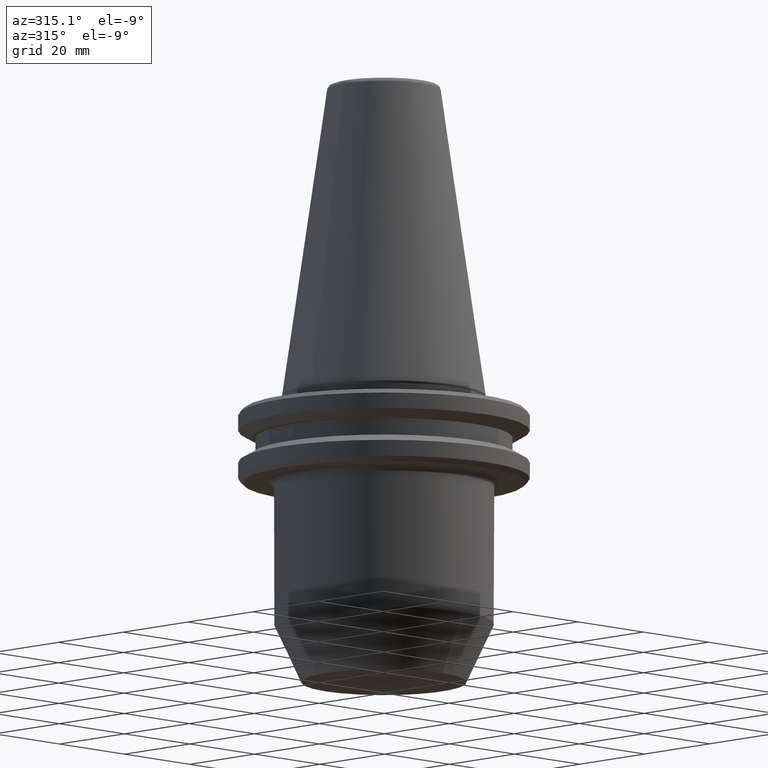
[diagram: clean part render]
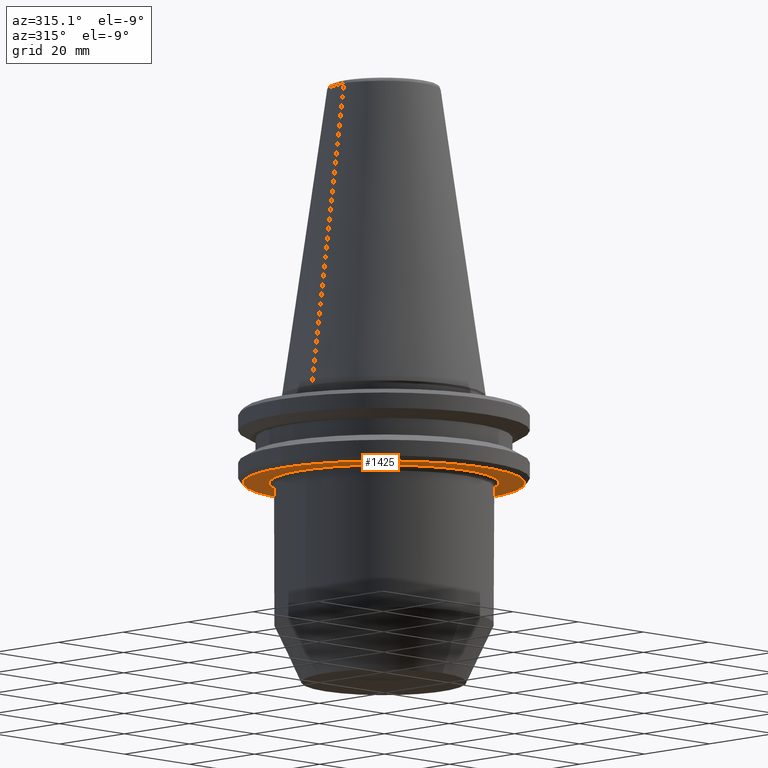
[diagram: same view with one face highlighted and labeled with its STEP entity id]
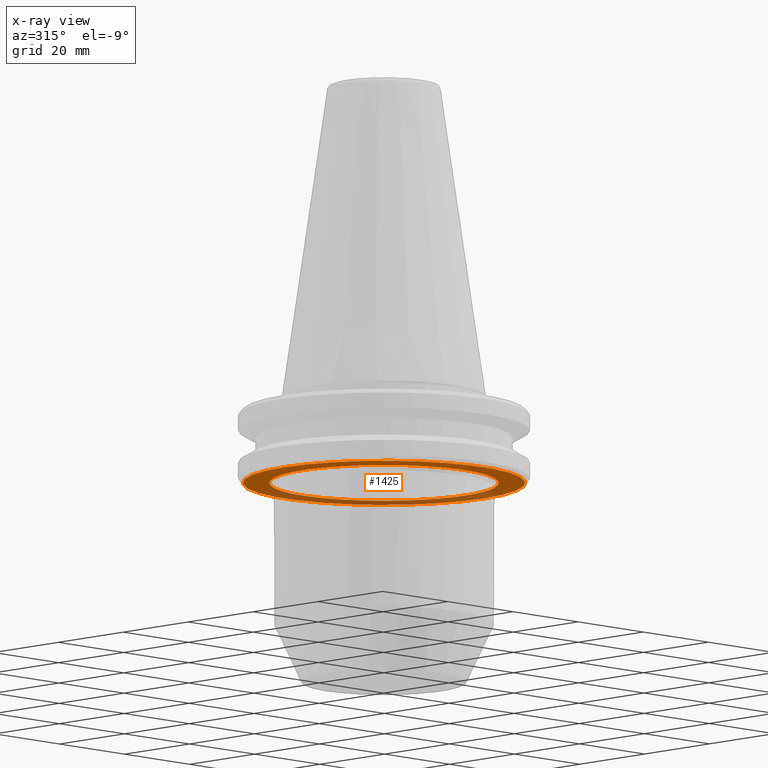
[diagram: x-ray of the same camera — body ghosted, the highlighted face saturated]
A machine part, auxiliary view. The second image highlights one B-rep face of the part: STEP entity #1425.
The next image is the same camera in x-ray: the body ghosted, the highlighted face saturated — about 33% of this face is hidden behind the body in this view.
In plain terms, the highlighted planar face has unit normal (0, 0, -1).
Its self-contained STEP definition (entity closure, byte-faithful):
#5 = CIRCLE ( 'NONE', #312, 30.75000000000072100 ) ;
#25 = B_SPLINE_CURVE_WITH_KNOTS ( 'NONE', 3,
 ( #825, #1403, #1048, #350, #329, #1164, #470, #1287, #706, #594, #1406, #829, #1555, #358, #938, #1139, #95, #474, #224, #1050, #1294, #1170, #601, #1410, #710, #1564, #1384, #835, #99, #1054, #941, #232, #1178, #363, #713, #1298, #481, #1264, #239, #1093, #865, #1257, #712, #1423, #737, #1308, #1331, #328, #1045, #875, #44, #879, #750, #1302, #678, #1021, #669, #792, #1511, #1368, #434, #313, #1012, #1120, #664, #1124, #174, #914, #188, #1284, #431, #255, #1072, #965, #565, #1326, #1357, #48, #964, #374, #1382, #1501, #1288, #1559, #1392, #1346, #1300, #1407, #1419, #1372, #1261, #1259, #1274, #1510, #789, #1330, #1522, #1527, #1272, #1509, #1502, #1290 ),
 .UNSPECIFIED., .F., .F.,
 ( 4, 1, 1, 1, 1, 2, 2, 1, 1, 1, 1, 2, 2, 1, 1, 1, 2, 2, 2, 1, 1, 1, 2, 2, 1, 1, 1, 1, 2, 2, 1, 1, 1, 1, 2, 2, 2, 1, 1, 1, 1, 2, 2, 1, 1, 1, 1, 2, 2, 1, 1, 1, 2, 2, 2, 1, 1, 1, 2, 2, 1, 1, 1, 1, 2, 2, 1, 1, 1, 1, 2, 2, 4 ),
 ( 0.0000000000000000000, 0.03125000000000039600, 0.04687500000000057600, 0.05468750000000067300, 0.05859375000000069400, 0.06054687500000068000, 0.06250000000000066600, 0.09375000000000061100, 0.1093750000000005600, 0.1171875000000004900, 0.1210937500000004400, 0.1230468750000004300, 0.1250000000000004200, 0.1562500000000000800, 0.1718749999999999700, 0.1796874999999999200, 0.1835937499999998600, 0.1874999999999997800, 0.2499999999999990600, 0.2812499999999986700, 0.2968749999999984500, 0.3046874999999983300, 0.3085937499999982800, 0.3124999999999982200, 0.3437499999999977200, 0.3593749999999975000, 0.3671874999999974500, 0.3710937499999974500, 0.3730468749999975000, 0.3749999999999975600, 0.4062499999999982800, 0.4218749999999986700, 0.4296874999999988900, 0.4335937499999990000, 0.4355468749999990600, 0.4374999999999991700, 0.5000000000000005600, 0.5312500000000013300, 0.5468750000000015500, 0.5546875000000017800, 0.5585937500000018900, 0.5605468750000018900, 0.5625000000000018900, 0.5937500000000025500, 0.6093750000000027800, 0.6171875000000030000, 0.6210937500000031100, 0.6230468750000031100, 0.6250000000000031100, 0.6562500000000035500, 0.6718750000000037700, 0.6796875000000037700, 0.6835937500000038900, 0.6875000000000038900, 0.7500000000000041100, 0.7812500000000043300, 0.7968750000000044400, 0.8046875000000044400, 0.8085937500000043300, 0.8125000000000043300, 0.8437500000000032200, 0.8593750000000026600, 0.8671875000000024400, 0.8710937500000023300, 0.8730468750000024400, 0.8750000000000024400, 0.9062500000000018900, 0.9218750000000017800, 0.9296875000000016700, 0.9335937500000015500, 0.9355468750000016700, 0.9375000000000016700, 1.000000000000000000 ),
 .UNSPECIFIED. ) ;
#44 = CARTESIAN_POINT ( 'NONE',  ( -3.837335444516245100, -24.73962540207490300, -19.10000000000000500 ) ) ;
#45 = CARTESIAN_POINT ( 'NONE',  ( 20.56088779845605100, 14.22903646988849900, -19.10000000000000100 ) ) ;
#48 = CARTESIAN_POINT ( 'NONE',  ( 15.01572007592657200, -20.01148269599195100, -19.10000000000000900 ) ) ;
#52 = CARTESIAN_POINT ( 'NONE',  ( 17.21603762584531300, 18.12778312858146300, -19.10000000000000500 ) ) ;
#57 = CARTESIAN_POINT ( 'NONE',  ( 5.764681737297190800, 24.32633328048867600, -19.10000000000000100 ) ) ;
#61 = CARTESIAN_POINT ( 'NONE',  ( 1.514953816513463700, 24.95408993328777200, -19.10000000000000900 ) ) ;
#68 = CARTESIAN_POINT ( 'NONE',  ( -19.52000370093090000, 15.62708017767181600, -19.10000000000000900 ) ) ;
#72 = CARTESIAN_POINT ( 'NONE',  ( -13.78382136989219100, 20.85700700325283600, -19.10000000000000100 ) ) ;
#76 = CARTESIAN_POINT ( 'NONE',  ( -22.34287878874224700, 11.21650911063311400, -19.10000000000000900 ) ) ;
#80 = CARTESIAN_POINT ( 'NONE',  ( -23.97148751168807500, 7.097145650212051600, -19.10000000000000900 ) ) ;
#93 = CARTESIAN_POINT ( 'NONE',  ( 23.66849171369898400, 8.050000000000000700, -19.10000000000006200 ) ) ;
#95 = CARTESIAN_POINT ( 'NONE',  ( -22.50104028027932300, -10.89518905508793300, -19.10000000000000100 ) ) ;
#99 = CARTESIAN_POINT ( 'NONE',  ( -15.11547583870624200, -19.91879939989068000, -19.10000000000000500 ) ) ;
#149 = CARTESIAN_POINT ( 'NONE',  ( 8.001669642592075200, 23.70393824034986400, -19.10000000000000900 ) ) ;
#166 = CARTESIAN_POINT ( 'NONE',  ( 19.94689003573789100, 15.07061682492183500, -19.09999999999999800 ) ) ;
#172 = CARTESIAN_POINT ( 'NONE',  ( 14.73871795094084500, 20.24558678046984600, -19.10000000000000900 ) ) ;
#173 = EDGE_CURVE ( 'NONE', #614, #782, #5, .T. ) ;
#174 = CARTESIAN_POINT ( 'NONE',  ( 5.546619939708148400, -24.37697613497838100, -19.10000000000000500 ) ) ;
#175 = ORIENTED_EDGE ( 'NONE', *, *, #1140, .T. ) ;
#178 = CARTESIAN_POINT ( 'NONE',  ( 5.632613471503741900, 24.35724758514024700, -19.10000000000000900 ) ) ;
#183 = CARTESIAN_POINT ( 'NONE',  ( -3.174458745867000600, 24.80659953822524200, -19.10000000000000900 ) ) ;
#188 = CARTESIAN_POINT ( 'NONE',  ( 7.321596763233437800, -23.92274225090835700, -19.10000000000000500 ) ) ;
#194 = CARTESIAN_POINT ( 'NONE',  ( -14.00594933652659600, 20.70848981279971200, -19.10000000000000500 ) ) ;
#201 = CARTESIAN_POINT ( 'NONE',  ( -22.20142180490238500, 11.49584313460023600, -19.09999999999999800 ) ) ;
#206 = AXIS2_PLACEMENT_3D ( 'NONE', #459, #1107, #527 ) ;
#212 = CARTESIAN_POINT ( 'NONE',  ( 0.0000000000000000000, 2.166680460328873200E-015, -19.10000000000000500 ) ) ;
#224 = CARTESIAN_POINT ( 'NONE',  ( -21.65865191858413000, -12.52222715960475200, -19.10000000000001200 ) ) ;
#232 = CARTESIAN_POINT ( 'NONE',  ( -14.23102820838347400, -20.55446680334251400, -19.10000000000000900 ) ) ;
#239 = CARTESIAN_POINT ( 'NONE',  ( -10.51138542257542200, -22.68287510223854000, -19.10000000000000100 ) ) ;
#255 = CARTESIAN_POINT ( 'NONE',  ( 9.336069984981389100, -23.19151288567449100, -19.10000000000000500 ) ) ;
#288 = CARTESIAN_POINT ( 'NONE',  ( -11.00061980426187300, 22.46108022351477400, -19.10000000000000100 ) ) ;
#301 = AXIS2_PLACEMENT_3D ( 'NONE', #1105, #654, #723 ) ;
#309 = CARTESIAN_POINT ( 'NONE',  ( 20.02539040750961500, 14.96653570878245000, -19.10000000000000100 ) ) ;
#311 = CARTESIAN_POINT ( 'NONE',  ( 10.82840084368984700, 22.53845412915854100, -19.10000000000000900 ) ) ;
#312 = AXIS2_PLACEMENT_3D ( 'NONE', #435, #1434, #553 ) ;
#313 = CARTESIAN_POINT ( 'NONE',  ( 4.400037488844588100, -24.61412716344575800, -19.10000000000000900 ) ) ;
#319 = CARTESIAN_POINT ( 'NONE',  ( 2.685130315645277000, 24.85971880835476700, -19.10000000000000100 ) ) ;
#324 = CARTESIAN_POINT ( 'NONE',  ( -6.352159153036065000, 24.17957312679568100, -19.09999999999999800 ) ) ;
#328 = CARTESIAN_POINT ( 'NONE',  ( -6.516696324927552900, -24.13575167085688400, -19.10000000000000500 ) ) ;
#329 = CARTESIAN_POINT ( 'NONE',  ( -24.14217418037019100, -6.496528408417751700, -19.10000000000000100 ) ) ;
#333 = CARTESIAN_POINT ( 'NONE',  ( -17.96771113259132600, 17.39801436242582300, -19.10000000000000500 ) ) ;
#337 = CARTESIAN_POINT ( 'NONE',  ( -22.46244799386568000, 10.97452844390143900, -19.10000000000000100 ) ) ;
#350 = CARTESIAN_POINT ( 'NONE',  ( -24.28972683222337600, -5.933501320466171500, -19.10000000000000500 ) ) ;
#358 = CARTESIAN_POINT ( 'NONE',  ( -22.61311896569745600, -10.66115860203794300, -19.10000000000000900 ) ) ;
#363 = CARTESIAN_POINT ( 'NONE',  ( -13.48922618123229500, -21.06073490109870500, -19.10000000000000900 ) ) ;
#374 = CARTESIAN_POINT ( 'NONE',  ( 16.48245583345043400, -18.79861718530351000, -19.10000000000000100 ) ) ;
#388 = CARTESIAN_POINT ( 'NONE',  ( -25.06702412868633400, 1.057622911398116200, -19.10000000000000100 ) ) ;
#413 = CARTESIAN_POINT ( 'NONE',  ( 23.66849171366861900, -8.050000000000000700, -19.10000000000006200 ) ) ;
#420 = CARTESIAN_POINT ( 'NONE',  ( 22.61325892373552900, 10.66947929158425800, -19.10000000000000500 ) ) ;
#423 = CARTESIAN_POINT ( 'NONE',  ( -30.75000000000072100, 3.827021247335525400E-015, -19.10000000000006200 ) ) ;
#426 = CARTESIAN_POINT ( 'NONE',  ( 19.86878916942251600, 15.17343649878746200, -19.10000000000000500 ) ) ;
#431 = CARTESIAN_POINT ( 'NONE',  ( 9.086935308265070800, -23.29131025708751700, -19.10000000000000500 ) ) ;
#432 = CARTESIAN_POINT ( 'NONE',  ( 9.749797765388738200, 23.02062913941136900, -19.10000000000000900 ) ) ;
#434 = CARTESIAN_POINT ( 'NONE',  ( 3.202797052169963800, -24.81115412286859700, -19.10000000000000900 ) ) ;
#435 = CARTESIAN_POINT ( 'NONE',  ( 0.0000000000000000000, 0.0000000000000000000, -19.10000000000006200 ) ) ;
#436 = CARTESIAN_POINT ( 'NONE',  ( 3.889547225842317600, 24.71280324778175700, -19.10000000000000500 ) ) ;
#442 = CARTESIAN_POINT ( 'NONE',  ( -7.104668214216173000, 23.97932416124641000, -19.10000000000000100 ) ) ;
#448 = CARTESIAN_POINT ( 'NONE',  ( -22.44217321107358700, 11.01593493471555300, -19.10000000000000100 ) ) ;
#451 = CARTESIAN_POINT ( 'NONE',  ( -19.90777072030379500, 15.12415364009387800, -19.10000000000000500 ) ) ;
#452 = EDGE_CURVE ( 'NONE', #782, #614, #910, .T. ) ;
#456 = CARTESIAN_POINT ( 'NONE',  ( -23.20150613021001700, 9.356352669474691900, -19.10000000000000500 ) ) ;
#459 = CARTESIAN_POINT ( 'NONE',  ( 0.0000000000000000000, 0.0000000000000000000, -19.10000000000006200 ) ) ;
#464 = DIRECTION ( 'NONE',  ( 0.0000000000000000000, 0.0000000000000000000, -1.000000000000000000 ) ) ;
#470 = CARTESIAN_POINT ( 'NONE',  ( -24.02977038931001300, -6.897235517029527900, -19.10000000000000500 ) ) ;
#474 = CARTESIAN_POINT ( 'NONE',  ( -22.16816779791543400, -11.57955514554833000, -19.10000000000000500 ) ) ;
#478 = CARTESIAN_POINT ( 'NONE',  ( 30.75000000000072100, 0.0000000000000000000, -19.10000000000006200 ) ) ;
#481 = CARTESIAN_POINT ( 'NONE',  ( -10.91607335808650000, -22.49215156394640800, -19.10000000000000500 ) ) ;
#527 = DIRECTION ( 'NONE',  ( -1.000000000000000000, 0.0000000000000000000, 0.0000000000000000000 ) ) ;
#534 = B_SPLINE_CURVE_WITH_KNOTS ( 'NONE', 3,
 ( #1237, #1224, #1114, #420, #1355, #545, #891, #1484, #658, #1003, #773, #45, #650, #309, #166, #1118, #426, #1241, #552, #1360, #662, #52, #1492, #1342, #779, #172, #896, #1247, #311, #1010, #1366, #1123, #432, #667, #149, #557, #1499, #783, #57, #900, #178, #1015, #436, #319, #1126, #763, #563, #1251, #61, #672, #1371, #183, #1508, #791, #1019, #904, #1460, #324, #1135, #442, #1258, #568, #1377, #796, #675, #1515, #907, #288, #680, #1523, #802, #72, #915, #194, #1144, #1029, #333, #1268, #68, #451, #808, #1387, #574, #922, #684, #1530, #201, #76, #1031, #448, #337, #1147, #456, #1271, #581, #1538, #1391, #689, #80, #813, #1023, #1154 ),
 .UNSPECIFIED., .F., .F.,
 ( 4, 1, 1, 1, 1, 2, 2, 1, 1, 1, 1, 2, 2, 1, 1, 1, 2, 2, 2, 1, 1, 1, 2, 2, 1, 1, 1, 1, 2, 2, 1, 1, 1, 1, 2, 2, 2, 1, 1, 1, 1, 2, 2, 1, 1, 1, 1, 2, 2, 1, 1, 1, 2, 2, 2, 1, 1, 1, 2, 2, 1, 1, 1, 1, 2, 2, 1, 1, 1, 1, 2, 2, 4 ),
 ( 0.0000000000000000000, 0.03125000000000012500, 0.04687500000000022900, 0.05468750000000025000, 0.05859375000000025700, 0.06054687500000022200, 0.06250000000000018000, 0.09374999999999943100, 0.1093749999999990600, 0.1171874999999988900, 0.1210937499999987500, 0.1230468749999986700, 0.1249999999999986000, 0.1562499999999978900, 0.1718749999999976100, 0.1796874999999974500, 0.1835937499999973100, 0.1874999999999972000, 0.2499999999999955000, 0.2812499999999946200, 0.2968749999999941700, 0.3046874999999940000, 0.3085937499999939500, 0.3124999999999938900, 0.3437499999999941200, 0.3593749999999941700, 0.3671874999999942300, 0.3710937499999942800, 0.3730468749999943400, 0.3749999999999943900, 0.4062499999999949500, 0.4218749999999952300, 0.4296874999999953900, 0.4335937499999954500, 0.4355468749999955000, 0.4374999999999955600, 0.4999999999999967800, 0.5312499999999973400, 0.5468749999999976700, 0.5546874999999977800, 0.5585937499999977800, 0.5605468749999977800, 0.5624999999999977800, 0.5937499999999984500, 0.6093749999999988900, 0.6171874999999990000, 0.6210937499999991100, 0.6230468749999992200, 0.6249999999999993300, 0.6562500000000003300, 0.6718750000000007800, 0.6796875000000010000, 0.6835937500000012200, 0.6875000000000013300, 0.7500000000000028900, 0.7812500000000037700, 0.7968750000000042200, 0.8046875000000044400, 0.8085937500000044400, 0.8125000000000044400, 0.8437500000000043300, 0.8593750000000043300, 0.8671875000000042200, 0.8710937500000041100, 0.8730468750000041100, 0.8750000000000042200, 0.9062500000000027800, 0.9218750000000020000, 0.9296875000000015500, 0.9335937500000014400, 0.9355468750000013300, 0.9375000000000012200, 1.000000000000000000 ),
 .UNSPECIFIED. ) ;
#545 = CARTESIAN_POINT ( 'NONE',  ( 22.22356264588319900, 11.45100580936844800, -19.10000000000000100 ) ) ;
#552 = CARTESIAN_POINT ( 'NONE',  ( 18.71814443126283200, 16.59923025378017400, -19.10000000000000500 ) ) ;
#553 = DIRECTION ( 'NONE',  ( -1.000000000000000000, 0.0000000000000000000, 0.0000000000000000000 ) ) ;
#557 = CARTESIAN_POINT ( 'NONE',  ( 6.804256176435000500, 24.06098711988689200, -19.10000000000000100 ) ) ;
#563 = CARTESIAN_POINT ( 'NONE',  ( 1.646933561098471200, 24.94573141396943000, -19.10000000000000100 ) ) ;
#565 = CARTESIAN_POINT ( 'NONE',  ( 11.00845535462885200, -22.49290010121016400, -19.10000000000000500 ) ) ;
#568 = CARTESIAN_POINT ( 'NONE',  ( -9.231820171472939800, 23.23766516332873900, -19.10000000000000500 ) ) ;
#574 = CARTESIAN_POINT ( 'NONE',  ( -20.23275092316867300, 14.68481230799946300, -19.10000000000000500 ) ) ;
#580 = FACE_BOUND ( 'NONE', #826, .T. ) ;
#581 = CARTESIAN_POINT ( 'NONE',  ( -23.80549171706875800, 7.638891849124218100, -19.09999999999999800 ) ) ;
#594 = CARTESIAN_POINT ( 'NONE',  ( -23.78696124392714100, -7.724297537274465800, -19.10000000000000900 ) ) ;
#601 = CARTESIAN_POINT ( 'NONE',  ( -20.38937916831026300, -14.46655565650135200, -19.10000000000000900 ) ) ;
#603 = CARTESIAN_POINT ( 'NONE',  ( -24.80000000000000400, -3.155946767611901300, -19.10000000000006200 ) ) ;
#614 = VERTEX_POINT ( 'NONE', #423 ) ;
#650 = CARTESIAN_POINT ( 'NONE',  ( 20.20655719714997300, 14.72240385313555900, -19.10000000000000500 ) ) ;
#654 = DIRECTION ( 'NONE',  ( -0.0000000000000000000, -0.0000000000000000000, 1.000000000000000000 ) ) ;
#658 = CARTESIAN_POINT ( 'NONE',  ( 22.10868140371263700, 11.67082041018687200, -19.10000000000000500 ) ) ;
#662 = CARTESIAN_POINT ( 'NONE',  ( 17.41032469338047400, 17.94263416725934900, -19.10000000000000500 ) ) ;
#664 = CARTESIAN_POINT ( 'NONE',  ( 5.420645475696684200, -24.40529688832838300, -19.10000000000000500 ) ) ;
#667 = CARTESIAN_POINT ( 'NONE',  ( 9.006694230404635300, 23.33223599621141300, -19.10000000000000100 ) ) ;
#669 = CARTESIAN_POINT ( 'NONE',  ( 1.307037714904049500, -24.96584430697337000, -19.10000000000000500 ) ) ;
#672 = CARTESIAN_POINT ( 'NONE',  ( 0.1432002703999451500, 25.03510498679143100, -19.10000000000000500 ) ) ;
#675 = CARTESIAN_POINT ( 'NONE',  ( -10.19007934134699900, 22.82902092945946400, -19.10000000000000900 ) ) ;
#678 = CARTESIAN_POINT ( 'NONE',  ( 0.8912645041208736600, -24.98509914269873300, -19.10000000000000500 ) ) ;
#680 = CARTESIAN_POINT ( 'NONE',  ( -11.95619137846467700, 21.97618856144556400, -19.10000000000000100 ) ) ;
#684 = CARTESIAN_POINT ( 'NONE',  ( -21.29227914410361000, 13.13553402114794000, -19.10000000000000500 ) ) ;
#688 = CARTESIAN_POINT ( 'NONE',  ( -24.80000000000000400, -3.155946767611901300, -19.10000000000006200 ) ) ;
#689 = CARTESIAN_POINT ( 'NONE',  ( -23.95858801748797300, 7.140581203016998800, -19.10000000000000500 ) ) ;
#706 = CARTESIAN_POINT ( 'NONE',  ( -23.99551224226559800, -7.015499603579669100, -19.10000000000000100 ) ) ;
#710 = CARTESIAN_POINT ( 'NONE',  ( -19.43506163519607800, -15.79224567608449100, -19.10000000000000900 ) ) ;
#712 = CARTESIAN_POINT ( 'NONE',  ( -8.751360785021525100, -23.43640131069515700, -19.10000000000000900 ) ) ;
#713 = CARTESIAN_POINT ( 'NONE',  ( -12.57879551944393100, -21.62584815565486800, -19.10000000000000500 ) ) ;
#723 = DIRECTION ( 'NONE',  ( -1.000000000000000000, 1.776356839400250500E-015, 0.0000000000000000000 ) ) ;
#737 = CARTESIAN_POINT ( 'NONE',  ( -7.018810586894471900, -23.99563298851090200, -19.10000000000000500 ) ) ;
#741 = CARTESIAN_POINT ( 'NONE',  ( -24.80000000000000100, 3.155946767611925300, -19.10000000000006200 ) ) ;
#742 = VERTEX_POINT ( 'NONE', #969 ) ;
#750 = CARTESIAN_POINT ( 'NONE',  ( -0.8534173427766136300, -25.00105539047618900, -19.10000000000000900 ) ) ;
#762 = VERTEX_POINT ( 'NONE', #688 ) ;
#763 = CARTESIAN_POINT ( 'NONE',  ( 1.777008712921567500, 24.93703428770977500, -19.10000000000000900 ) ) ;
#773 = CARTESIAN_POINT ( 'NONE',  ( 21.23753708916963100, 13.22188701558121900, -19.10000000000000900 ) ) ;
#775 = VERTEX_POINT ( 'NONE', #413 ) ;
#779 = CARTESIAN_POINT ( 'NONE',  ( 15.88573067890380500, 19.35872426209683500, -19.10000000000000100 ) ) ;
#782 = VERTEX_POINT ( 'NONE', #478 ) ;
#783 = CARTESIAN_POINT ( 'NONE',  ( 5.895308985402815300, 24.29525964389145900, -19.10000000000000500 ) ) ;
#787 = AXIS2_PLACEMENT_3D ( 'NONE', #212, #464, #1157 ) ;
#789 = CARTESIAN_POINT ( 'NONE',  ( 21.79787447261405100, -12.24364214807675400, -19.10000000000000500 ) ) ;
#791 = CARTESIAN_POINT ( 'NONE',  ( -5.301324708704212800, 24.43549640492053900, -19.10000000000000500 ) ) ;
#792 = CARTESIAN_POINT ( 'NONE',  ( 1.390207868339095700, -24.96135021552969100, -19.10000000000000100 ) ) ;
#796 = CARTESIAN_POINT ( 'NONE',  ( -10.07099033082150900, 22.88205860168992300, -19.10000000000000100 ) ) ;
#802 = CARTESIAN_POINT ( 'NONE',  ( -13.55966609227880500, 21.00459431301502600, -19.10000000000000100 ) ) ;
#808 = CARTESIAN_POINT ( 'NONE',  ( -20.07059613371497200, 14.90570133534441400, -19.10000000000000500 ) ) ;
#813 = CARTESIAN_POINT ( 'NONE',  ( -24.35946932984918300, 5.778727982650878800, -19.10000000000000500 ) ) ;
#825 = CARTESIAN_POINT ( 'NONE',  ( -24.80000000000000400, -3.155946767611901300, -19.10000000000006200 ) ) ;
#826 = EDGE_LOOP ( 'NONE', ( #1129, #175, #1305, #1208 ) ) ;
#829 = CARTESIAN_POINT ( 'NONE',  ( -22.99037381342548200, -9.831495198608154200, -19.10000000000000500 ) ) ;
#835 = CARTESIAN_POINT ( 'NONE',  ( -16.11474838664366900, -19.13755923637349800, -19.10000000000000900 ) ) ;
#865 = CARTESIAN_POINT ( 'NONE',  ( -10.38816310743743900, -22.73956709562450500, -19.10000000000000500 ) ) ;
#875 = CARTESIAN_POINT ( 'NONE',  ( -5.145067506338336600, -24.50112790000743200, -19.10000000000000900 ) ) ;
#879 = CARTESIAN_POINT ( 'NONE',  ( -1.848697175712388900, -24.94046687075803700, -19.10000000000000900 ) ) ;
#882 = FACE_OUTER_BOUND ( 'NONE', #1529, .T. ) ;
#891 = CARTESIAN_POINT ( 'NONE',  ( 22.16589015388815300, 11.56179209410478100, -19.10000000000000500 ) ) ;
#896 = CARTESIAN_POINT ( 'NONE',  ( 12.90348748065503400, 21.42497509767990800, -19.10000000000000500 ) ) ;
#900 = CARTESIAN_POINT ( 'NONE',  ( 5.677522843380419500, 24.34682105090280800, -19.10000000000000900 ) ) ;
#904 = CARTESIAN_POINT ( 'NONE',  ( -6.150622053705553100, 24.23184143722073000, -19.10000000000000500 ) ) ;
#907 = CARTESIAN_POINT ( 'NONE',  ( -10.30784933787237800, 22.77608834432724200, -19.10000000000000500 ) ) ;
#910 = CIRCLE ( 'NONE', #206, 30.75000000000072100 ) ;
#914 = CARTESIAN_POINT ( 'NONE',  ( 6.288379528338332100, -24.20681812615407600, -19.10000000000000500 ) ) ;
#915 = CARTESIAN_POINT ( 'NONE',  ( -13.93279036081104700, 20.75777849851472800, -19.10000000000001200 ) ) ;
#919 = VERTEX_POINT ( 'NONE', #93 ) ;
#922 = CARTESIAN_POINT ( 'NONE',  ( -20.70373961477905300, 14.03099937659802300, -19.10000000000000900 ) ) ;
#938 = CARTESIAN_POINT ( 'NONE',  ( -22.55700998960996600, -10.77883175066905800, -19.10000000000000500 ) ) ;
#941 = CARTESIAN_POINT ( 'NONE',  ( -14.38005745278015200, -20.45049410444327600, -19.10000000000000900 ) ) ;
#964 = CARTESIAN_POINT ( 'NONE',  ( 16.00197630209950700, -19.21387347180726800, -19.10000000000000500 ) ) ;
#965 = CARTESIAN_POINT ( 'NONE',  ( 9.583404165392330800, -23.09039912489458500, -19.10000000000000900 ) ) ;
#969 = CARTESIAN_POINT ( 'NONE',  ( -24.80000000000000100, 3.155946767611925300, -19.10000000000006200 ) ) ;
#986 = EDGE_CURVE ( 'NONE', #762, #742, #1390, .T. ) ;
#1003 = CARTESIAN_POINT ( 'NONE',  ( 21.76264463224083200, 12.32361944706672200, -19.10000000000000100 ) ) ;
#1010 = CARTESIAN_POINT ( 'NONE',  ( 10.25105216874928100, 22.80296664504478000, -19.10000000000000900 ) ) ;
#1012 = CARTESIAN_POINT ( 'NONE',  ( 4.996023306369593800, -24.49681367235386600, -19.10000000000000500 ) ) ;
#1015 = CARTESIAN_POINT ( 'NONE',  ( 4.912483019740001600, 24.52247492355225600, -19.10000000000000900 ) ) ;
#1019 = CARTESIAN_POINT ( 'NONE',  ( -5.868034925698467900, 24.30258623475768000, -19.10000000000000500 ) ) ;
#1021 = CARTESIAN_POINT ( 'NONE',  ( 1.182289990208775100, -24.97227425496214400, -19.10000000000000100 ) ) ;
#1023 = CARTESIAN_POINT ( 'NONE',  ( -24.63172115102225500, 4.478312371961519200, -19.10000000000000500 ) ) ;
#1029 = CARTESIAN_POINT ( 'NONE',  ( -16.40523286797880700, 18.92041028809354900, -19.10000000000000900 ) ) ;
#1031 = CARTESIAN_POINT ( 'NONE',  ( -22.40257870899363400, 11.09623871377085500, -19.10000000000000500 ) ) ;
#1041 = PLANE ( 'NONE',  #787 ) ;
#1045 = CARTESIAN_POINT ( 'NONE',  ( -6.472935622485549000, -24.14752148548434400, -19.10000000000000100 ) ) ;
#1048 = CARTESIAN_POINT ( 'NONE',  ( -24.55070115982175900, -4.800361454493101500, -19.10000000000000500 ) ) ;
#1050 = CARTESIAN_POINT ( 'NONE',  ( -20.99495477598252400, -13.58090038887695700, -19.10000000000000500 ) ) ;
#1054 = CARTESIAN_POINT ( 'NONE',  ( -14.60265991588574000, -20.29339010028250800, -19.10000000000000500 ) ) ;
#1071 = ORIENTED_EDGE ( 'NONE', *, *, #173, .T. ) ;
#1072 = CARTESIAN_POINT ( 'NONE',  ( 9.501868670030127400, -23.12406770464987800, -19.10000000000000900 ) ) ;
#1093 = CARTESIAN_POINT ( 'NONE',  ( -10.43008158996299700, -22.72037321322985900, -19.10000000000000900 ) ) ;
#1105 = CARTESIAN_POINT ( 'NONE',  ( 0.0000000000000000000, 0.0000000000000000000, -19.10000000000000500 ) ) ;
#1107 = DIRECTION ( 'NONE',  ( -0.0000000000000000000, -0.0000000000000000000, -1.000000000000000000 ) ) ;
#1114 = CARTESIAN_POINT ( 'NONE',  ( 23.09549085123716600, 9.611383868858952800, -19.10000000000000500 ) ) ;
#1118 = CARTESIAN_POINT ( 'NONE',  ( 19.89436590746210600, 15.13988271968254100, -19.10000000000000900 ) ) ;
#1120 = CARTESIAN_POINT ( 'NONE',  ( 5.293357614929019100, -24.43345692396279700, -19.10000000000000100 ) ) ;
#1123 = CARTESIAN_POINT ( 'NONE',  ( 9.834730351160837700, 22.98448059795199000, -19.10000000000000500 ) ) ;
#1124 = CARTESIAN_POINT ( 'NONE',  ( 5.505472687627364100, -24.38629972157947600, -19.10000000000000100 ) ) ;
#1126 = CARTESIAN_POINT ( 'NONE',  ( 2.080173906217655900, 24.91439305088427100, -19.10000000000000500 ) ) ;
#1129 = ORIENTED_EDGE ( 'NONE', *, *, #1461, .T. ) ;
#1135 = CARTESIAN_POINT ( 'NONE',  ( -6.390699006000712500, 24.16941887326347800, -19.10000000000000100 ) ) ;
#1137 = CIRCLE ( 'NONE', #301, 25.00000000000000000 ) ;
#1139 = CARTESIAN_POINT ( 'NONE',  ( -22.51939301256001600, -10.85719954549779800, -19.10000000000000900 ) ) ;
#1140 = EDGE_CURVE ( 'NONE', #775, #919, #1137, .T. ) ;
#1144 = CARTESIAN_POINT ( 'NONE',  ( -15.28278914398578600, 19.83817028454195300, -19.10000000000000500 ) ) ;
#1147 = CARTESIAN_POINT ( 'NONE',  ( -22.78564438052530500, 10.31012492454961700, -19.10000000000000500 ) ) ;
#1154 = CARTESIAN_POINT ( 'NONE',  ( -24.80000000000000100, 3.155946767611925300, -19.10000000000006200 ) ) ;
#1157 = DIRECTION ( 'NONE',  ( -1.000000000000000000, 0.0000000000000000000, -0.0000000000000000000 ) ) ;
#1164 = CARTESIAN_POINT ( 'NONE',  ( -24.06413148243008800, -6.777156241134807000, -19.10000000000000100 ) ) ;
#1170 = CARTESIAN_POINT ( 'NONE',  ( -20.49243851606864600, -14.32021076507281500, -19.10000000000000500 ) ) ;
#1178 = CARTESIAN_POINT ( 'NONE',  ( -14.15503648290551900, -20.60686450209623300, -19.10000000000000500 ) ) ;
#1208 = ORIENTED_EDGE ( 'NONE', *, *, #986, .F. ) ;
#1224 = CARTESIAN_POINT ( 'NONE',  ( 23.45393160759155300, 8.680846471238490700, -19.09999999999999800 ) ) ;
#1237 = CARTESIAN_POINT ( 'NONE',  ( 23.66849171369898400, 8.050000000000000700, -19.10000000000006200 ) ) ;
#1241 = CARTESIAN_POINT ( 'NONE',  ( 19.40582458449413400, 15.77744380696416500, -19.09999999999999800 ) ) ;
#1247 = CARTESIAN_POINT ( 'NONE',  ( 11.96367982998305000, 21.97274798509371900, -19.10000000000000500 ) ) ;
#1251 = CARTESIAN_POINT ( 'NONE',  ( 1.560184079474393300, 24.95130588459781900, -19.10000000000001200 ) ) ;
#1257 = CARTESIAN_POINT ( 'NONE',  ( -9.715599491279743200, -23.04542020273179000, -19.10000000000000900 ) ) ;
#1258 = CARTESIAN_POINT ( 'NONE',  ( -8.098134397221146600, 23.67005486158208400, -19.10000000000000900 ) ) ;
#1259 = CARTESIAN_POINT ( 'NONE',  ( 20.26460828601700500, -14.65707736248280000, -19.10000000000000100 ) ) ;
#1261 = CARTESIAN_POINT ( 'NONE',  ( 19.81511518805403000, -15.24345940156882600, -19.10000000000000500 ) ) ;
#1264 = CARTESIAN_POINT ( 'NONE',  ( -10.63316395592460300, -22.62631506639652200, -19.10000000000000500 ) ) ;
#1268 = CARTESIAN_POINT ( 'NONE',  ( -18.71310544319783600, 16.60575122547776100, -19.10000000000000500 ) ) ;
#1271 = CARTESIAN_POINT ( 'NONE',  ( -23.61595104288627000, 8.215984443904798000, -19.10000000000000900 ) ) ;
#1272 = CARTESIAN_POINT ( 'NONE',  ( 22.06881979948293400, -11.74601560365417700, -19.10000000000000900 ) ) ;
#1274 = CARTESIAN_POINT ( 'NONE',  ( 20.86274382425791200, -13.80569238064624200, -19.10000000000000500 ) ) ;
#1284 = CARTESIAN_POINT ( 'NONE',  ( 8.502564518591171300, -23.51457798951741700, -19.10000000000000900 ) ) ;
#1287 = CARTESIAN_POINT ( 'NONE',  ( -24.00665983332454100, -6.977246190899399500, -19.09999999999999400 ) ) ;
#1288 = CARTESIAN_POINT ( 'NONE',  ( 16.88870464827671100, -18.43311090791267800, -19.10000000000000100 ) ) ;
#1290 = CARTESIAN_POINT ( 'NONE',  ( 23.66849171366861900, -8.050000000000000700, -19.10000000000006200 ) ) ;
#1294 = CARTESIAN_POINT ( 'NONE',  ( -20.64579071716962100, -14.09995930673131200, -19.10000000000000500 ) ) ;
#1298 = CARTESIAN_POINT ( 'NONE',  ( -11.47693012646543700, -22.21506421710463600, -19.10000000000000500 ) ) ;
#1300 = CARTESIAN_POINT ( 'NONE',  ( 19.45514217217456500, -15.70206937301807700, -19.10000000000000500 ) ) ;
#1302 = CARTESIAN_POINT ( 'NONE',  ( 0.3094236847493429000, -25.00203562122306200, -19.10000000000000500 ) ) ;
#1305 = ORIENTED_EDGE ( 'NONE', *, *, #1362, .T. ) ;
#1308 = CARTESIAN_POINT ( 'NONE',  ( -6.726291182025364400, -24.07842282972018600, -19.10000000000000500 ) ) ;
#1326 = CARTESIAN_POINT ( 'NONE',  ( 12.29171085141086600, -21.81805296692584400, -19.10000000000000500 ) ) ;
#1330 = CARTESIAN_POINT ( 'NONE',  ( 21.94442903537630200, -11.97728989978553900, -19.10000000000000900 ) ) ;
#1331 = CARTESIAN_POINT ( 'NONE',  ( -6.600580321299510400, -24.11294767038293700, -19.10000000000000100 ) ) ;
#1342 = CARTESIAN_POINT ( 'NONE',  ( 17.02130124562610900, 18.31074741921742100, -19.10000000000000100 ) ) ;
#1346 = CARTESIAN_POINT ( 'NONE',  ( 19.05883845055219100, -16.18609527383071300, -19.10000000000000500 ) ) ;
#1355 = CARTESIAN_POINT ( 'NONE',  ( 22.35613019871265200, 11.19164411765560300, -19.10000000000000100 ) ) ;
#1357 = CARTESIAN_POINT ( 'NONE',  ( 14.12699103039932100, -20.63874200445396700, -19.10000000000000900 ) ) ;
#1360 = CARTESIAN_POINT ( 'NONE',  ( 17.85620550788673800, 17.50385404071379700, -19.10000000000000500 ) ) ;
#1362 = EDGE_CURVE ( 'NONE', #919, #742, #534, .T. ) ;
#1366 = CARTESIAN_POINT ( 'NONE',  ( 10.00153648339032800, 22.91239903267899800, -19.10000000000000500 ) ) ;
#1368 = CARTESIAN_POINT ( 'NONE',  ( 2.167558732235242300, -24.91557719192657300, -19.10000000000000900 ) ) ;
#1371 = CARTESIAN_POINT ( 'NONE',  ( -1.185812304192387800, 25.00736006714198100, -19.10000000000000100 ) ) ;
#1372 = CARTESIAN_POINT ( 'NONE',  ( 19.78697210999881800, -15.27997695154850000, -19.10000000000000100 ) ) ;
#1377 = CARTESIAN_POINT ( 'NONE',  ( -9.792323532118684800, 23.00357643537418500, -19.10000000000000500 ) ) ;
#1382 = CARTESIAN_POINT ( 'NONE',  ( 16.68566522222892300, -18.61712484657087400, -19.10000000000000100 ) ) ;
#1384 = CARTESIAN_POINT ( 'NONE',  ( -16.92608034595531000, -18.41296693152986900, -19.10000000000000900 ) ) ;
#1387 = CARTESIAN_POINT ( 'NONE',  ( -20.17839964220367900, 14.75941927438406200, -19.10000000000000500 ) ) ;
#1390 =( BOUNDED_CURVE ( )  B_SPLINE_CURVE ( 3, ( #603, #1413, #388, #741 ),
 .UNSPECIFIED., .F., .F. ) 
 B_SPLINE_CURVE_WITH_KNOTS ( ( 4, 4 ),
 ( 0.0000000000000000000, 1.000000000000000000 ),
 .UNSPECIFIED. ) 
 CURVE ( )  GEOMETRIC_REPRESENTATION_ITEM ( )  RATIONAL_B_SPLINE_CURVE ( ( 1.000000000000000000, 0.9946666666666665900, 0.9946666666666665900, 1.000000000000000000 ) ) 
 REPRESENTATION_ITEM ( '' )  );
#1391 = CARTESIAN_POINT ( 'NONE',  ( -23.93361575238519400, 7.223845440604177900, -19.10000000000000100 ) ) ;
#1392 = CARTESIAN_POINT ( 'NONE',  ( 18.23656120148395800, -17.12691568017805800, -19.10000000000000900 ) ) ;
#1403 = CARTESIAN_POINT ( 'NONE',  ( -24.71588319586380000, -3.816951814967770600, -19.10000000000000100 ) ) ;
#1406 = CARTESIAN_POINT ( 'NONE',  ( -23.45202565070444900, -8.709407026003184200, -19.10000000000000500 ) ) ;
#1407 = CARTESIAN_POINT ( 'NONE',  ( 19.64958530725780900, -15.45665249820201100, -19.10000000000000900 ) ) ;
#1410 = CARTESIAN_POINT ( 'NONE',  ( -20.33820933531650600, -14.53841147364660500, -19.10000000000000100 ) ) ;
#1413 = CARTESIAN_POINT ( 'NONE',  ( -25.06702412868633400, -1.057622911398065700, -19.10000000000000100 ) ) ;
#1419 = CARTESIAN_POINT ( 'NONE',  ( 19.73212335249465000, -15.35074442519304400, -19.10000000000001200 ) ) ;
#1423 = CARTESIAN_POINT ( 'NONE',  ( -7.600625649334459100, -23.82112578744089900, -19.10000000000000500 ) ) ;
#1425 = ADVANCED_FACE ( 'NONE', ( #882, #580 ), #1041, .T. ) ;
#1434 = DIRECTION ( 'NONE',  ( -0.0000000000000000000, -0.0000000000000000000, -1.000000000000000000 ) ) ;
#1460 = CARTESIAN_POINT ( 'NONE',  ( -6.271566255603576500, 24.20060301417872100, -19.10000000000000100 ) ) ;
#1461 = EDGE_CURVE ( 'NONE', #762, #775, #25, .T. ) ;
#1477 = ORIENTED_EDGE ( 'NONE', *, *, #452, .T. ) ;
#1484 = CARTESIAN_POINT ( 'NONE',  ( 22.12725119778106700, 11.63556767815172000, -19.10000000000000500 ) ) ;
#1492 = CARTESIAN_POINT ( 'NONE',  ( 17.08580284973527700, 18.25057139960947300, -19.10000000000000500 ) ) ;
#1499 = CARTESIAN_POINT ( 'NONE',  ( 6.199328248262534500, 24.22036062499929100, -19.10000000000000500 ) ) ;
#1501 = CARTESIAN_POINT ( 'NONE',  ( 16.82053583466527500, -18.49534654101525200, -19.10000000000000900 ) ) ;
#1502 = CARTESIAN_POINT ( 'NONE',  ( 23.23925610418786300, -9.312032231826945500, -19.10000000000000100 ) ) ;
#1508 = CARTESIAN_POINT ( 'NONE',  ( -4.161760430795297300, 24.66699904560221100, -19.10000000000000900 ) ) ;
#1509 = CARTESIAN_POINT ( 'NONE',  ( 22.71253429945906500, -10.53177234967142600, -19.10000000000000500 ) ) ;
#1510 = CARTESIAN_POINT ( 'NONE',  ( 21.49679345112061300, -12.77119475077663900, -19.10000000000000500 ) ) ;
#1511 = CARTESIAN_POINT ( 'NONE',  ( 1.429999701918700300, -24.95910541884568400, -19.10000000000000500 ) ) ;
#1515 = CARTESIAN_POINT ( 'NONE',  ( -10.26939654447731900, 22.79344945893881700, -19.09999999999999800 ) ) ;
#1522 = CARTESIAN_POINT ( 'NONE',  ( 22.00638400199200400, -11.86258694760189900, -19.10000000000000500 ) ) ;
#1523 = CARTESIAN_POINT ( 'NONE',  ( -13.03172457253512700, 21.34017657104515200, -19.10000000000000500 ) ) ;
#1527 = CARTESIAN_POINT ( 'NONE',  ( 22.04749750602226800, -11.78599564867273500, -19.10000000000000500 ) ) ;
#1529 = EDGE_LOOP ( 'NONE', ( #1477, #1071 ) ) ;
#1530 = CARTESIAN_POINT ( 'NONE',  ( -21.90987915754272600, 12.04932357435518900, -19.10000000000000500 ) ) ;
#1538 = CARTESIAN_POINT ( 'NONE',  ( -23.89584160862110100, 7.348618431235028200, -19.10000000000000900 ) ) ;
#1555 = CARTESIAN_POINT ( 'NONE',  ( -22.74182448348955200, -10.38573772718267000, -19.10000000000000500 ) ) ;
#1559 = CARTESIAN_POINT ( 'NONE',  ( 17.48088960658520100, -17.88665077942786400, -19.10000000000001600 ) ) ;
#1564 = CARTESIAN_POINT ( 'NONE',  ( -18.48849444125613300, -16.89050514988029100, -19.10000000000000900 ) ) ;